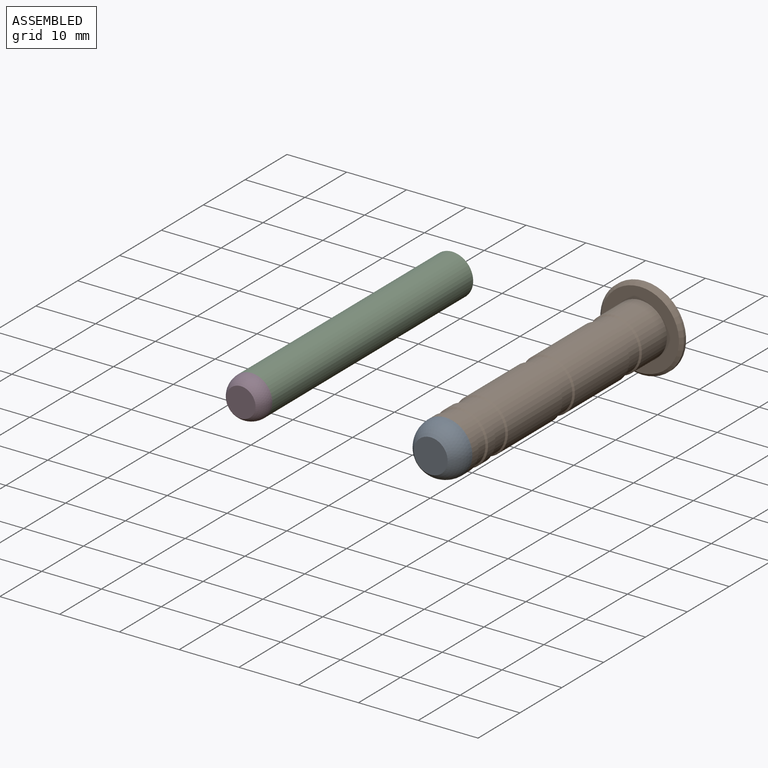
[diagram: assembled view]
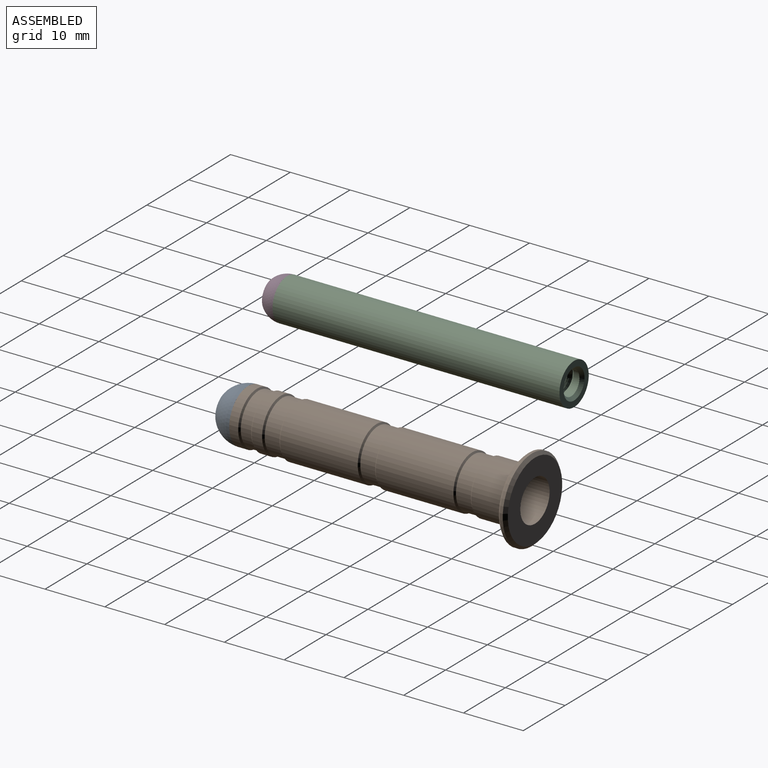
[diagram: assembled view, second angle]
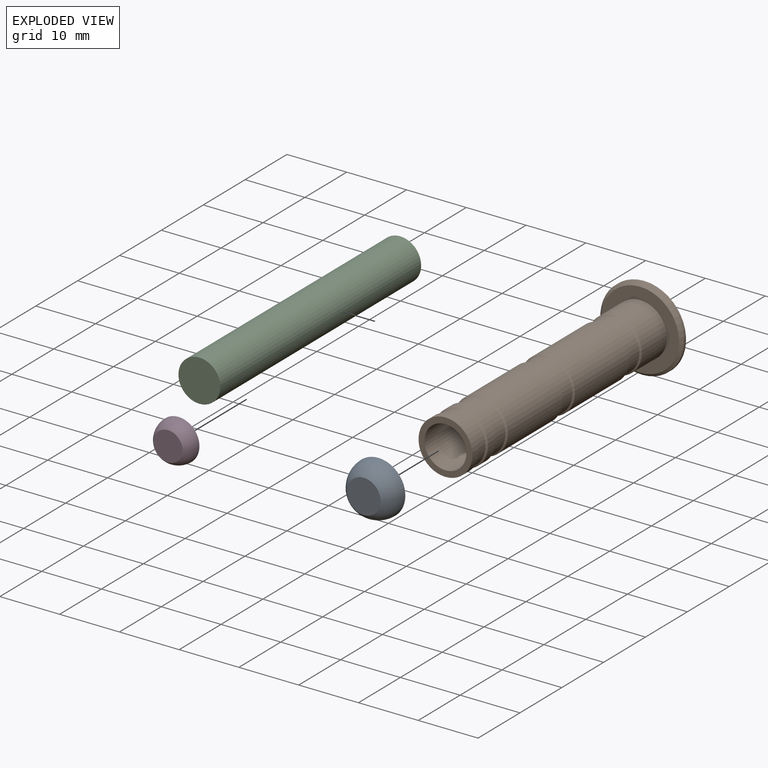
[diagram: exploded view]
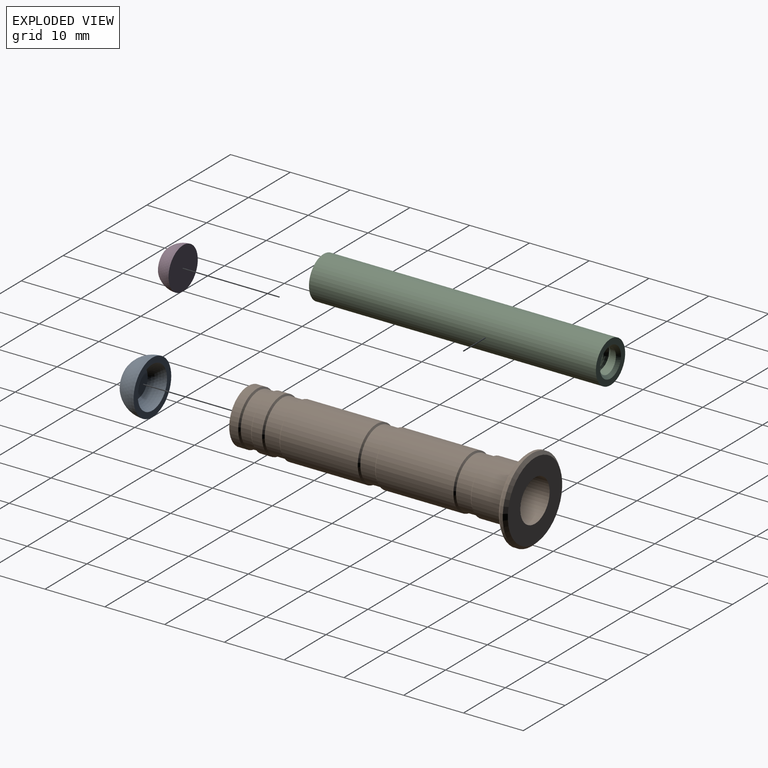
[diagram: exploded view, second angle]
ASSEMBLY  parts=4 mates=2
PART A: 5 faces, bbox 9x9x3.5 mm
  f0: sphere r=3.5mm, area 55mm2, adj f1,f4
  f1: plane 4.9x4.9mm, normal (0,0,-1), area 18.8mm2, adj f0
  f2: plane 5.66x5.66mm, normal (0,0,1), area 25.1mm2, adj f3
  f3: sphere r=4.5mm, area 99mm2, adj f2,f4
  f4: plane 9x9mm, normal (0,0,-1), area 25.1mm2, adj f0,f3
PART B: 24 faces, bbox 14x48x14 mm
  f0: cylinder r=4.5mm len=9mm, axis (0,1,0), area 169.6mm2, adj f9,f21
  f1: cylinder r=4.5mm len=13mm, axis (0,1,0), area 367.6mm2, adj f19,f20
  f2: cylinder r=4.5mm len=9mm, axis (0,1,0), area 49.5mm2, adj f15,f16
  f3: cylinder r=4.5mm len=13mm, axis (0,1,0), area 367.6mm2, adj f17,f18
  f4: cylinder r=4.5mm len=9mm, axis (0,1,0), area 42.4mm2, adj f6,f14
  f5: cylinder r=3.5mm len=48mm, axis (0,1,0), area 1055.6mm2, adj f6,f7
  f6: plane 9x9mm, normal (0,-1,0), area 25.1mm2, adj f4,f5
  f7: plane 13x13mm, normal (0,1,0), area 94.2mm2, adj f5,f23
  f8: cylinder r=7mm len=14mm, axis (0,1,0), area 22mm2, adj f22,f23
  f9: plane 13x13mm, normal (0,-1,0), area 69.1mm2, adj f0,f22
  f10: cylinder r=4.25mm len=8.5mm, axis (0,1,0), area 66.8mm2, adj f16,f17
  f11: cylinder r=4.25mm len=8.5mm, axis (0,1,0), area 46.7mm2, adj f14,f15
  f12: cylinder r=4.25mm len=8.5mm, axis (0,1,0), area 66.8mm2, adj f18,f19
  f13: cylinder r=4.25mm len=8.5mm, axis (0,1,0), area 66.8mm2, adj f20,f21
  f14: cone r=4.5mm half-angle=45deg, axis (0,-1,0), area 9.7mm2, adj f4,f11
  f15: cone r=4.25mm half-angle=45deg, axis (0,1,0), area 9.7mm2, adj f2,f11
  f16: cone r=4.5mm half-angle=45deg, axis (0,-1,0), area 9.7mm2, adj f2,f10
  f17: cone r=4mm half-angle=45deg, axis (0,1,0), area 9.7mm2, adj f3,f10
  f18: cone r=4.5mm half-angle=45deg, axis (0,-1,0), area 9.7mm2, adj f3,f12
  f19: cone r=4mm half-angle=45deg, axis (0,1,0), area 9.7mm2, adj f1,f12
  f20: cone r=4.5mm half-angle=45deg, axis (0,-1,0), area 9.7mm2, adj f1,f13
  f21: cone r=4mm half-angle=45deg, axis (0,1,0), area 9.7mm2, adj f0,f13
  f22: cone r=6.5mm half-angle=45deg, axis (0,1,0), area 30mm2, adj f8,f9
  f23: cone r=7mm half-angle=45deg, axis (0,-1,0), area 30mm2, adj f7,f8
PART C: 11 faces, bbox 7x48x7 mm
  f0: cylinder r=3.5mm len=48mm, axis (0,1,0), area 1055.6mm2, adj f1,f2
  f1: plane 7x7mm, normal (0,-1,0), area 38.5mm2, adj f0
  f2: plane 7x7mm, normal (0,1,0), area 18.8mm2, adj f0,f5
  f3: cone r=0mm half-angle=59deg, axis (0,1,0), area 14.7mm2, adj f4,f6
  f4: cylinder r=2mm len=34.5mm, axis (0,1,0), area 193.7mm2, adj f3,f5,f7,f9,f10
  f5: cone r=2mm half-angle=45deg, axis (0,1,0), area 10mm2, adj f2,f4
  f6: cylinder r=2mm len=4mm, axis (0,-1,0), area 6.3mm2, adj f3,f8,f9,f10
  f7: plane 1.01x0.87mm, normal (0,0,1), area 0.3mm2, adj f4,f9,f10
  f8: plane 1.01x0.87mm, normal (0,0,1), area 0.3mm2, adj f6,f9,f10
  f9: bspline ~35.83x6.62mm, area 274.9mm2, adj f4,f6,f7,f8,f10
  f10: bspline ~35.83x6.62mm, area 275mm2, adj f4,f6,f7,f8,f9
PART D: 3 faces, bbox 7x7x2.5 mm
  f0: plane 4.9x4.9mm, normal (0,0,1), area 18.8mm2, adj f1
  f1: sphere r=3.5mm, area 55mm2, adj f0,f2
  f2: plane 7x7mm, normal (0,0,-1), area 38.5mm2, adj f1
PLACE A rot(axis=(1,0,0),90deg) t=(31.67,-29.51,-10.16)mm
PLACE B t=(2.19,18.49,-10.16)mm
PLACE C t=(-22.67,-4.37,37.37)mm
PLACE D rot(axis=(1,0,0),90deg) t=(-24.49,-40.37,-63.13)mm
MATE fastened A.f4 <-> B.f5  axis (0,-1,0) through (2.19,-29.51,-10.16)mm
MATE fastened D.f2 <-> C.f0  axis (0,1,0) through (-22.67,-40.37,-4.93)mm
